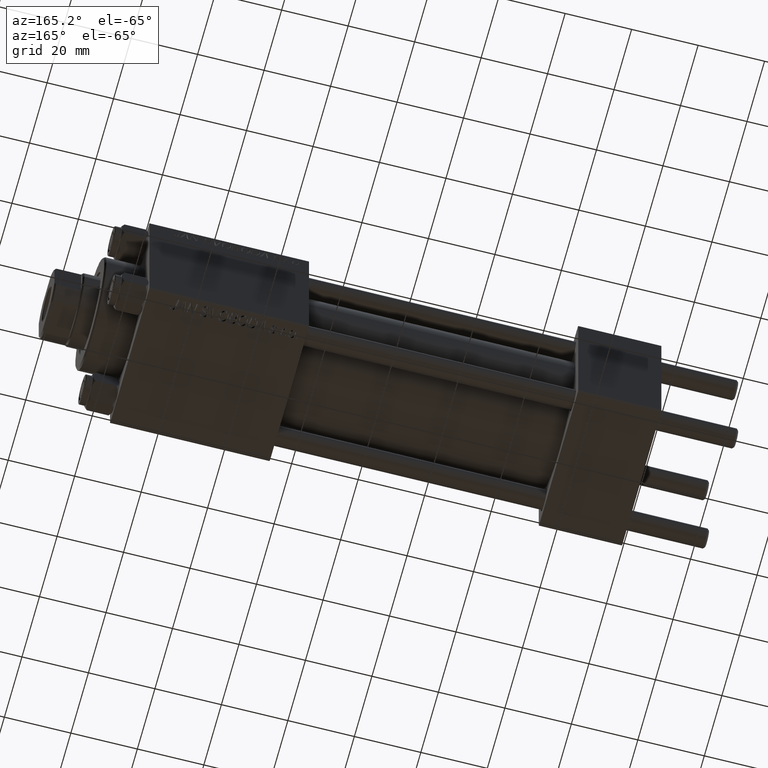
[diagram: clean part render]
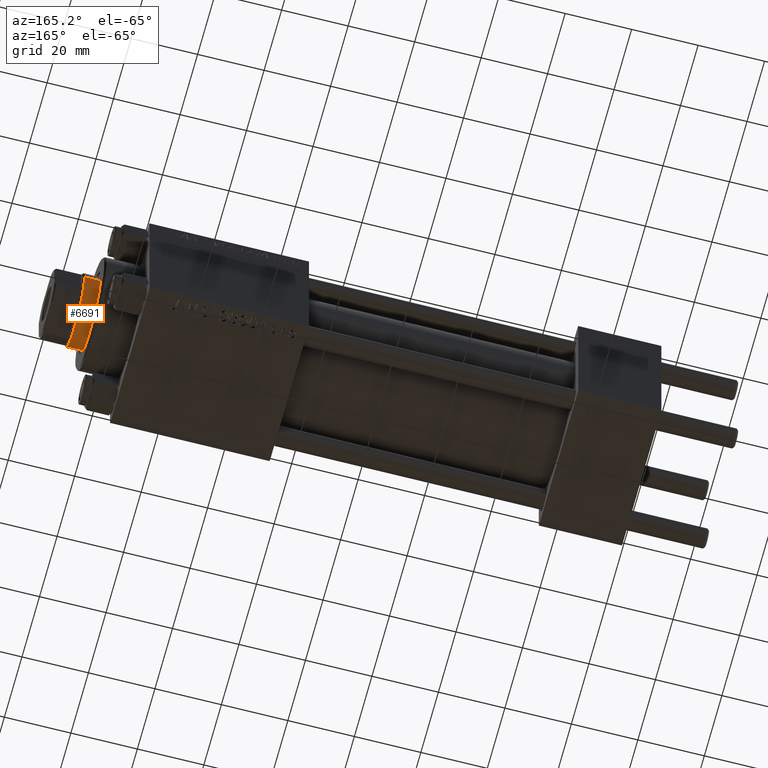
[diagram: same view with one face highlighted and labeled with its STEP entity id]
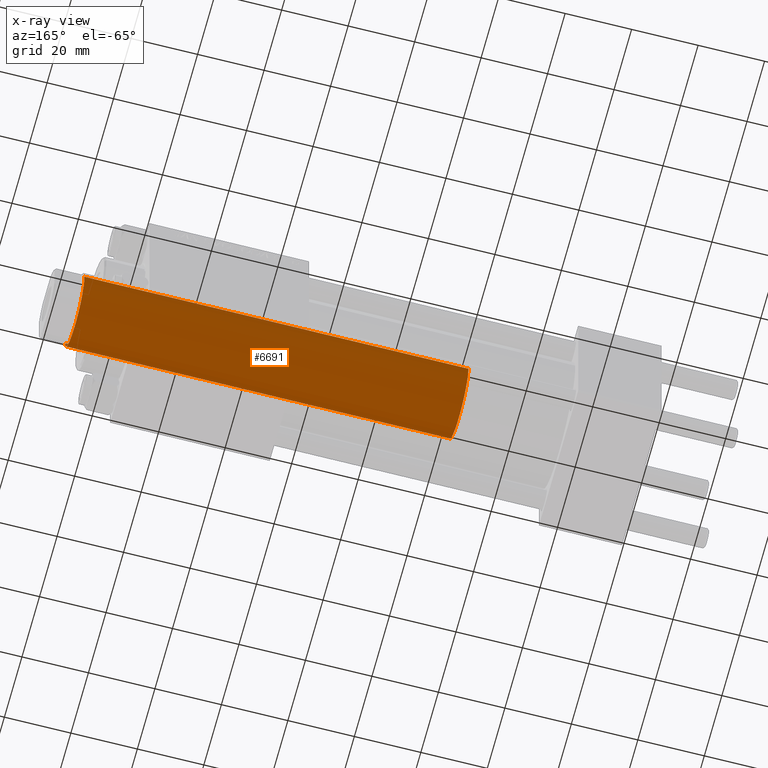
[diagram: x-ray of the same camera — body ghosted, the highlighted face saturated]
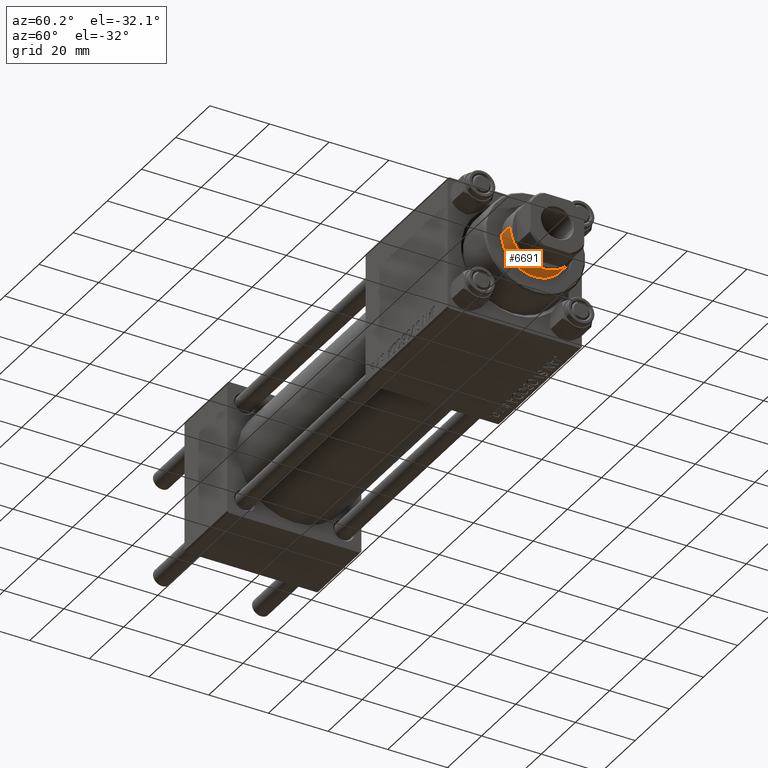
[diagram: same view with one face highlighted and labeled with its STEP entity id]
A machine part, auxiliary view. The second image highlights one B-rep face of the part: STEP entity #6691.
The next image is the same camera in x-ray: the body ghosted, the highlighted face saturated — about 1% of this face is hidden behind the body in this view.
A second angle (auxiliary view) of the same face is appended — the face is thin or edge-on in the first view.
In plain terms, the highlighted cylindrical surface (partial cylindrical patch) has radius 11 mm, axis along (-1, 0, 0).
Its self-contained STEP definition (entity closure, byte-faithful):
#513 = CYLINDRICAL_SURFACE ( 'NONE', #6440, 11.00000000000000000 ) ;
#1722 = DIRECTION ( 'NONE',  ( -0.000000000000000000, -0.000000000000000000, -1.000000000000000000 ) ) ;
#3804 = DIRECTION ( 'NONE',  ( -1.000000000000000000, 0.000000000000000000, 0.000000000000000000 ) ) ;
#5424 = CARTESIAN_POINT ( 'NONE',  ( 0.000000000000000000, 0.000000000000000000, 30.00000000000000000 ) ) ;
#5672 = DIRECTION ( 'NONE',  ( 0.000000000000000000, 0.000000000000000000, 1.000000000000000000 ) ) ;
#6440 = AXIS2_PLACEMENT_3D ( 'NONE', #30061, #19454, #3804 ) ;
#6691 = ADVANCED_FACE ( 'NONE', ( #22748 ), #513, .T. ) ;
#7846 = EDGE_CURVE ( 'NONE', #45828, #8592, #28219, .T. ) ;
#8592 = VERTEX_POINT ( 'NONE', #31544 ) ;
#9051 = EDGE_CURVE ( 'NONE', #38118, #18847, #45958, .T. ) ;
#11482 = ORIENTED_EDGE ( 'NONE', *, *, #9051, .T. ) ;
#13706 = DIRECTION ( 'NONE',  ( 1.000000000000000000, 0.000000000000000000, 0.000000000000000000 ) ) ;
#15182 = LINE ( 'NONE', #38408, #31072 ) ;
#18847 = VERTEX_POINT ( 'NONE', #37926 ) ;
#19454 = DIRECTION ( 'NONE',  ( -0.000000000000000000, -0.000000000000000000, -1.000000000000000000 ) ) ;
#20835 = DIRECTION ( 'NONE',  ( 1.000000000000000000, 0.000000000000000000, 0.000000000000000000 ) ) ;
#21420 = LINE ( 'NONE', #48138, #45595 ) ;
#22748 = FACE_OUTER_BOUND ( 'NONE', #37908, .T. ) ;
#24304 = CARTESIAN_POINT ( 'NONE',  ( 0.000000000000000000, 0.000000000000000000, 145.5000000000001137 ) ) ;
#25191 = ORIENTED_EDGE ( 'NONE', *, *, #7846, .T. ) ;
#26672 = AXIS2_PLACEMENT_3D ( 'NONE', #24304, #28591, #13706 ) ;
#28219 = CIRCLE ( 'NONE', #29050, 11.00000000000000000 ) ;
#28591 = DIRECTION ( 'NONE',  ( 0.000000000000000000, 0.000000000000000000, -1.000000000000000000 ) ) ;
#28773 = ORIENTED_EDGE ( 'NONE', *, *, #39491, .F. ) ;
#29050 = AXIS2_PLACEMENT_3D ( 'NONE', #5424, #5672, #20835 ) ;
#29837 = ORIENTED_EDGE ( 'NONE', *, *, #42683, .T. ) ;
#30061 = CARTESIAN_POINT ( 'NONE',  ( 0.000000000000000000, 0.000000000000000000, 146.0000000000000284 ) ) ;
#31072 = VECTOR ( 'NONE', #45952, 1000.000000000000000 ) ;
#31544 = CARTESIAN_POINT ( 'NONE',  ( -11.00000000000000000, 0.000000000000000000, 30.00000000000000000 ) ) ;
#32325 = CARTESIAN_POINT ( 'NONE',  ( 11.00000000000000000, 1.347111479062088207E-15, 30.00000000000000000 ) ) ;
#37908 = EDGE_LOOP ( 'NONE', ( #11482, #29837, #25191, #28773 ) ) ;
#37926 = CARTESIAN_POINT ( 'NONE',  ( 11.00000000000000000, 1.347111479062088207E-15, 145.5000000000001137 ) ) ;
#38118 = VERTEX_POINT ( 'NONE', #39272 ) ;
#38408 = CARTESIAN_POINT ( 'NONE',  ( 11.00000000000000000, 1.347111479062088207E-15, 146.0000000000000284 ) ) ;
#39272 = CARTESIAN_POINT ( 'NONE',  ( -11.00000000000000000, 0.000000000000000000, 145.5000000000001137 ) ) ;
#39491 = EDGE_CURVE ( 'NONE', #38118, #8592, #21420, .T. ) ;
#42683 = EDGE_CURVE ( 'NONE', #18847, #45828, #15182, .T. ) ;
#45595 = VECTOR ( 'NONE', #1722, 1000.000000000000000 ) ;
#45828 = VERTEX_POINT ( 'NONE', #32325 ) ;
#45952 = DIRECTION ( 'NONE',  ( -0.000000000000000000, -0.000000000000000000, -1.000000000000000000 ) ) ;
#45958 = CIRCLE ( 'NONE', #26672, 11.00000000000000000 ) ;
#48138 = CARTESIAN_POINT ( 'NONE',  ( -11.00000000000000000, 0.000000000000000000, 146.0000000000000284 ) ) ;